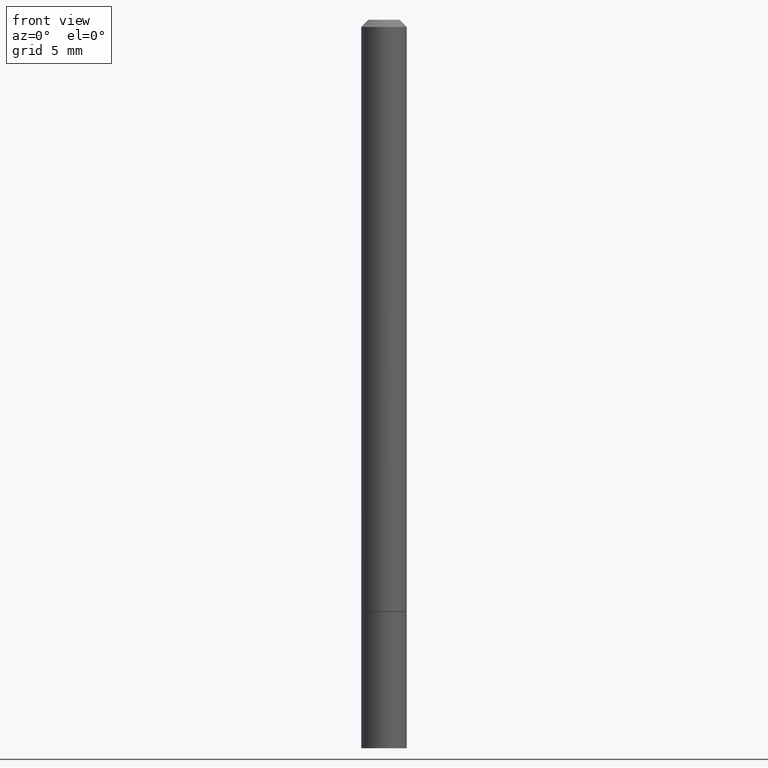
[diagram: clean part render]
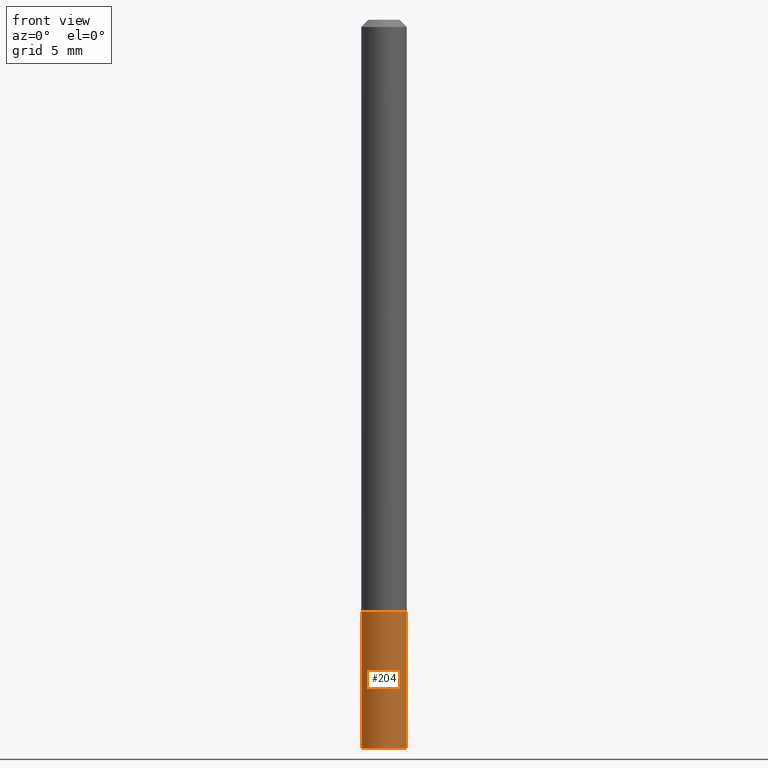
[diagram: same view with one face highlighted and labeled with its STEP entity id]
A machine part, front view. The second image highlights one B-rep face of the part: STEP entity #204.
In plain terms, the highlighted cylindrical surface (edge-blend (fillet) strip) has radius 1.5875 mm, axis along (-0, 0, 1).
Its self-contained STEP definition (entity closure, byte-faithful):
#6 = DIRECTION ( 'NONE',  ( 1.000000000000000000, -6.982962677686267499E-15, 4.876176775795935793E-29 ) ) ;
#10 = VERTEX_POINT ( 'NONE', #163 ) ;
#14 = CARTESIAN_POINT ( 'NONE',  ( -0.06250000000000001388, -5.884220716803138678E-15, -1.625000000000000000 ) ) ;
#15 = CIRCLE ( 'NONE', #309, 0.06250000000000001388 ) ;
#34 = CARTESIAN_POINT ( 'NONE',  ( 4.890937612370273194E-29, -6.982962677686291165E-15, -2.000000000000000000 ) ) ;
#40 = ORIENTED_EDGE ( 'NONE', *, *, #238, .T. ) ;
#42 = AXIS2_PLACEMENT_3D ( 'NONE', #86, #318, #6 ) ;
#54 = FACE_OUTER_BOUND ( 'NONE', #185, .T. ) ;
#60 = VERTEX_POINT ( 'NONE', #361 ) ;
#83 = DIRECTION ( 'NONE',  ( 1.000000000000000000, -6.982962677686261189E-15, 0.000000000000000000 ) ) ;
#86 = CARTESIAN_POINT ( 'NONE',  ( 0.000000000000000000, 0.000000000000000000, 0.000000000000000000 ) ) ;
#97 = VERTEX_POINT ( 'NONE', #331 ) ;
#100 = CARTESIAN_POINT ( 'NONE',  ( -0.06250000000000001388, 4.440892098500627148E-16, -3.074334431409317165E-30 ) ) ;
#110 = VECTOR ( 'NONE', #332, 39.37007874015748143 ) ;
#111 = CARTESIAN_POINT ( 'NONE',  ( 0.06250000000000001388, -4.364351673553918173E-16, 3.047610484872460571E-30 ) ) ;
#113 = DIRECTION ( 'NONE',  ( -2.445468806185136597E-29, 3.491481338843145583E-15, 1.000000000000000000 ) ) ;
#114 = CIRCLE ( 'NONE', #283, 0.06250000000000001388 ) ;
#123 = ORIENTED_EDGE ( 'NONE', *, *, #171, .F. ) ;
#137 = VERTEX_POINT ( 'NONE', #14 ) ;
#145 = DIRECTION ( 'NONE',  ( -2.445468806185136597E-29, 3.491481338843145583E-15, 1.000000000000000000 ) ) ;
#146 = EDGE_CURVE ( 'NONE', #97, #10, #365, .T. ) ;
#154 = EDGE_CURVE ( 'NONE', #60, #137, #192, .T. ) ;
#163 = CARTESIAN_POINT ( 'NONE',  ( 0.06250000000000001388, -6.110092342975503093E-15, -1.625000000000000000 ) ) ;
#171 = EDGE_CURVE ( 'NONE', #137, #10, #114, .T. ) ;
#185 = EDGE_LOOP ( 'NONE', ( #314, #40, #240, #123 ) ) ;
#192 = LINE ( 'NONE', #100, #110 ) ;
#204 = ADVANCED_FACE ( 'NONE', ( #54 ), #338, .T. ) ;
#238 = EDGE_CURVE ( 'NONE', #60, #97, #15, .T. ) ;
#240 = ORIENTED_EDGE ( 'NONE', *, *, #146, .T. ) ;
#261 = DIRECTION ( 'NONE',  ( 1.000000000000000000, -6.982962677686261189E-15, 0.000000000000000000 ) ) ;
#272 = VECTOR ( 'NONE', #303, 39.37007874015748143 ) ;
#283 = AXIS2_PLACEMENT_3D ( 'NONE', #304, #113, #83 ) ;
#303 = DIRECTION ( 'NONE',  ( -2.445468806185136877E-29, 3.491481338843145188E-15, 1.000000000000000000 ) ) ;
#304 = CARTESIAN_POINT ( 'NONE',  ( 3.973886810050846970E-29, -5.673657175620112213E-15, -1.625000000000000000 ) ) ;
#309 = AXIS2_PLACEMENT_3D ( 'NONE', #34, #145, #261 ) ;
#314 = ORIENTED_EDGE ( 'NONE', *, *, #154, .F. ) ;
#318 = DIRECTION ( 'NONE',  ( -2.445468806185136597E-29, 3.491481338843145583E-15, 1.000000000000000000 ) ) ;
#331 = CARTESIAN_POINT ( 'NONE',  ( 0.06250000000000001388, -7.419397845041682046E-15, -2.000000000000000000 ) ) ;
#332 = DIRECTION ( 'NONE',  ( -2.445468806185136877E-29, 3.491481338843145188E-15, 1.000000000000000000 ) ) ;
#338 = CYLINDRICAL_SURFACE ( 'NONE', #42, 0.06250000000000001388 ) ;
#361 = CARTESIAN_POINT ( 'NONE',  ( -0.06250000000000001388, -5.884220716803138678E-15, -2.000000000000000000 ) ) ;
#365 = LINE ( 'NONE', #111, #272 ) ;